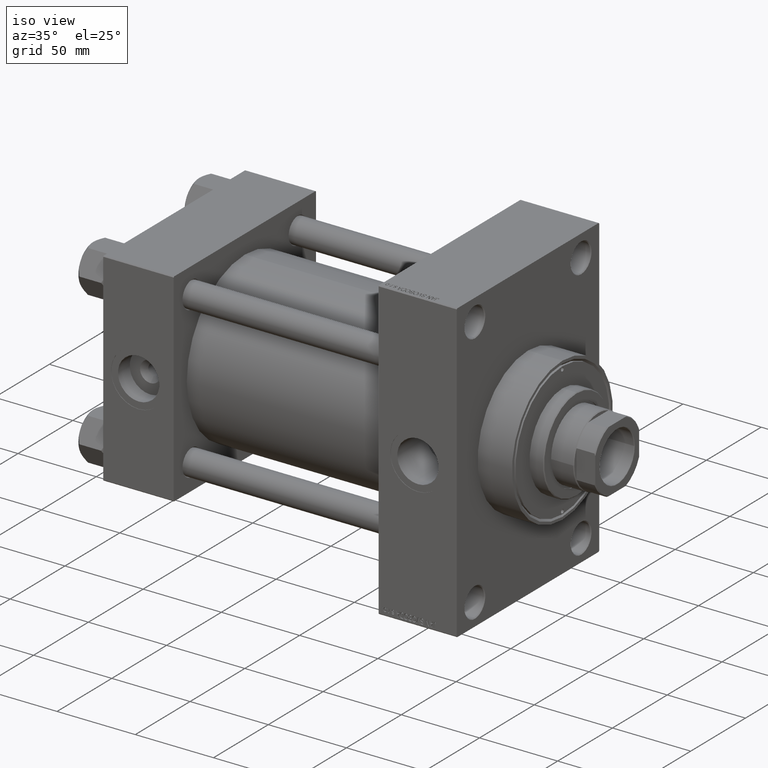
[diagram: clean part render]
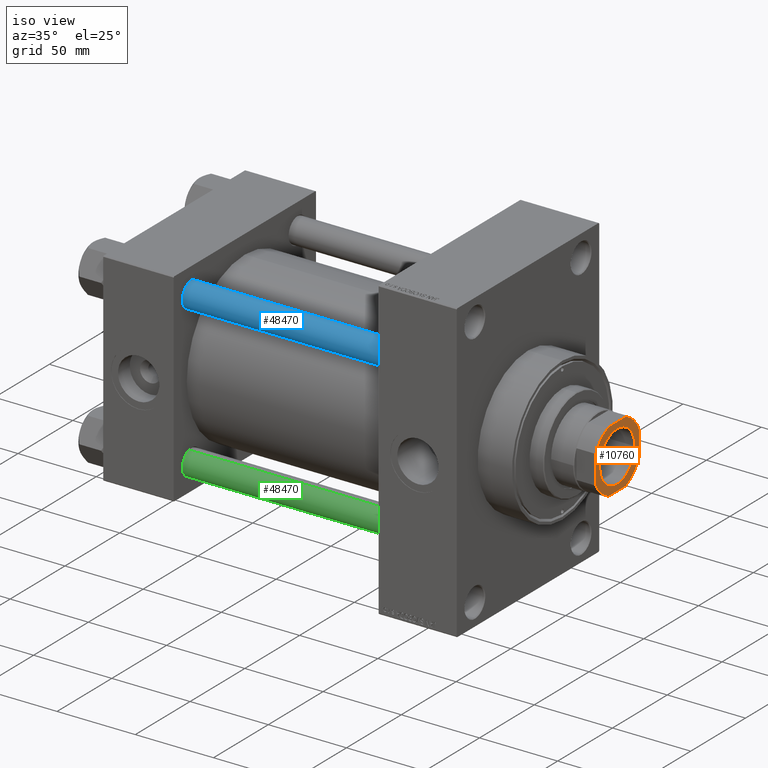
[diagram: same view with three faces highlighted in distinct colors, each labeled with its STEP entity id]
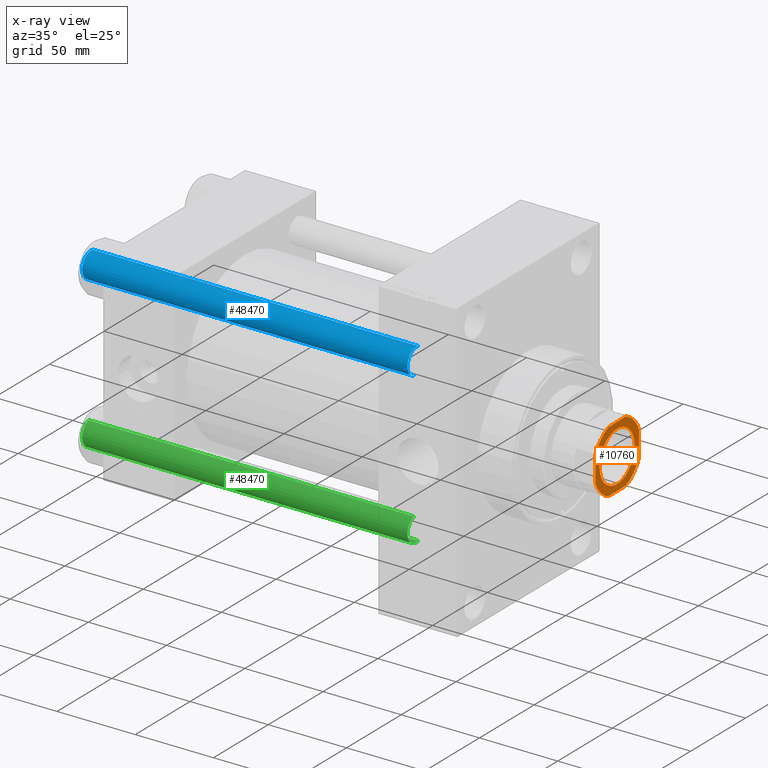
[diagram: x-ray of the same camera — body ghosted, the three highlighted faces saturated]
A machine part, iso view with three faces highlighted in distinct colors.
The next image is the same camera in x-ray (body ghosted, the three faces saturated) — at least one of them is partly hidden behind the body in this view.
Their STEP definitions:

[orange] entity #10760 — the highlighted planar face has unit normal (1, 0, 0).
#2503 = DIRECTION ( 'NONE',  ( 0.000000000000000000, -0.000000000000000000, -1.000000000000000000 ) ) ;
#2537 = CARTESIAN_POINT ( 'NONE',  ( 0.000000000000000000, 0.000000000000000000, 238.0000000000000000 ) ) ;
#2630 = DIRECTION ( 'NONE',  ( 1.000000000000000000, 0.000000000000000000, 0.000000000000000000 ) ) ;
#2685 = VERTEX_POINT ( 'NONE', #7756 ) ;
#3050 = EDGE_LOOP ( 'NONE', ( #30208, #29051 ) ) ;
#3477 = EDGE_CURVE ( 'NONE', #2685, #27339, #14506, .T. ) ;
#3597 = CIRCLE ( 'NONE', #14881, 21.49999999999998579 ) ;
#3603 = EDGE_CURVE ( 'NONE', #48784, #8036, #22591, .T. ) ;
#5300 = AXIS2_PLACEMENT_3D ( 'NONE', #34429, #22780, #41259 ) ;
#5820 = DIRECTION ( 'NONE',  ( 1.000000000000000000, 0.000000000000000000, 0.000000000000000000 ) ) ;
#6553 = DIRECTION ( 'NONE',  ( -0.000000000000000000, 0.000000000000000000, 1.000000000000000000 ) ) ;
#7392 = CARTESIAN_POINT ( 'NONE',  ( -7.889866919029707049, -20.00000000000000000, 238.0000000000000000 ) ) ;
#7756 = CARTESIAN_POINT ( 'NONE',  ( 16.05000000000003624, 0.000000000000000000, 238.0000000000000000 ) ) ;
#7941 = DIRECTION ( 'NONE',  ( 1.000000000000000000, 0.000000000000000000, 0.000000000000000000 ) ) ;
#8036 = VERTEX_POINT ( 'NONE', #39852 ) ;
#8206 = VECTOR ( 'NONE', #13420, 1000.000000000000000 ) ;
#9530 = CARTESIAN_POINT ( 'NONE',  ( 7.889866919029819847, -20.00000000000000000, 238.0000000000000000 ) ) ;
#10760 = ADVANCED_FACE ( 'NONE', ( #13443, #48358 ), #12689, .T. ) ;
#10949 = DIRECTION ( 'NONE',  ( -1.000000000000000000, -0.000000000000000000, -0.000000000000000000 ) ) ;
#11484 = EDGE_CURVE ( 'NONE', #36184, #26987, #44297, .T. ) ;
#11493 = CARTESIAN_POINT ( 'NONE',  ( -20.00000000000000000, 7.889866919029703496, 238.0000000000000000 ) ) ;
#11809 = CARTESIAN_POINT ( 'NONE',  ( 0.000000000000000000, 0.000000000000000000, 238.0000000000000000 ) ) ;
#11979 = CARTESIAN_POINT ( 'NONE',  ( -19.99999999999999645, -20.00000000000000000, 238.0000000000000000 ) ) ;
#12689 = PLANE ( 'NONE',  #49514 ) ;
#12907 = CARTESIAN_POINT ( 'NONE',  ( -20.00000000000000355, 20.00000000000000000, 238.0000000000000000 ) ) ;
#12942 = ORIENTED_EDGE ( 'NONE', *, *, #17716, .T. ) ;
#13420 = DIRECTION ( 'NONE',  ( 1.734723475976807094E-16, -1.000000000000000000, 0.000000000000000000 ) ) ;
#13443 = FACE_BOUND ( 'NONE', #3050, .T. ) ;
#13943 = ORIENTED_EDGE ( 'NONE', *, *, #14117, .T. ) ;
#14117 = EDGE_CURVE ( 'NONE', #47388, #48998, #16270, .T. ) ;
#14506 = CIRCLE ( 'NONE', #28227, 16.05000000000003624 ) ;
#14805 = DIRECTION ( 'NONE',  ( -0.000000000000000000, 0.000000000000000000, 1.000000000000000000 ) ) ;
#14881 = AXIS2_PLACEMENT_3D ( 'NONE', #27178, #14805, #22386 ) ;
#15184 = CARTESIAN_POINT ( 'NONE',  ( -7.889866919029707049, 20.00000000000000000, 238.0000000000000000 ) ) ;
#15339 = AXIS2_PLACEMENT_3D ( 'NONE', #11809, #38859, #43180 ) ;
#15780 = VERTEX_POINT ( 'NONE', #15184 ) ;
#16203 = CARTESIAN_POINT ( 'NONE',  ( 20.00000000000000000, -7.889866919029816295, 238.0000000000000000 ) ) ;
#16270 = LINE ( 'NONE', #11979, #27676 ) ;
#17250 = DIRECTION ( 'NONE',  ( 1.000000000000000000, 0.000000000000000000, 0.000000000000000000 ) ) ;
#17716 = EDGE_CURVE ( 'NONE', #8036, #15780, #49652, .T. ) ;
#18868 = EDGE_CURVE ( 'NONE', #27902, #48784, #21755, .T. ) ;
#19977 = EDGE_CURVE ( 'NONE', #27339, #2685, #27108, .T. ) ;
#21323 = CARTESIAN_POINT ( 'NONE',  ( 0.000000000000000000, 0.000000000000000000, 238.0000000000000000 ) ) ;
#21755 = LINE ( 'NONE', #40009, #46461 ) ;
#22075 = DIRECTION ( 'NONE',  ( -0.000000000000000000, 0.000000000000000000, 1.000000000000000000 ) ) ;
#22386 = DIRECTION ( 'NONE',  ( 1.000000000000000000, 0.000000000000000000, 0.000000000000000000 ) ) ;
#22591 = CIRCLE ( 'NONE', #15339, 21.49999999999999645 ) ;
#22780 = DIRECTION ( 'NONE',  ( 0.000000000000000000, -0.000000000000000000, -1.000000000000000000 ) ) ;
#23600 = EDGE_CURVE ( 'NONE', #48998, #27902, #28234, .T. ) ;
#24595 = CARTESIAN_POINT ( 'NONE',  ( 0.000000000000000000, 0.000000000000000000, 238.0000000000000000 ) ) ;
#24624 = VECTOR ( 'NONE', #10949, 1000.000000000000000 ) ;
#24839 = DIRECTION ( 'NONE',  ( -0.000000000000000000, 0.000000000000000000, 1.000000000000000000 ) ) ;
#25326 = DIRECTION ( 'NONE',  ( -1.734723475976807094E-16, 1.000000000000000000, -0.000000000000000000 ) ) ;
#26987 = VERTEX_POINT ( 'NONE', #34632 ) ;
#27108 = CIRCLE ( 'NONE', #5300, 16.05000000000003624 ) ;
#27178 = CARTESIAN_POINT ( 'NONE',  ( 0.000000000000000000, 0.000000000000000000, 238.0000000000000000 ) ) ;
#27339 = VERTEX_POINT ( 'NONE', #36076 ) ;
#27676 = VECTOR ( 'NONE', #7941, 1000.000000000000000 ) ;
#27902 = VERTEX_POINT ( 'NONE', #16203 ) ;
#27961 = ORIENTED_EDGE ( 'NONE', *, *, #36193, .T. ) ;
#28227 = AXIS2_PLACEMENT_3D ( 'NONE', #44746, #2503, #37660 ) ;
#28234 = CIRCLE ( 'NONE', #30655, 21.50000000000002487 ) ;
#29051 = ORIENTED_EDGE ( 'NONE', *, *, #19977, .T. ) ;
#30208 = ORIENTED_EDGE ( 'NONE', *, *, #3477, .T. ) ;
#30655 = AXIS2_PLACEMENT_3D ( 'NONE', #2537, #6553, #5820 ) ;
#34117 = CARTESIAN_POINT ( 'NONE',  ( 20.00000000000000000, 7.889866919029738135, 238.0000000000000000 ) ) ;
#34315 = ORIENTED_EDGE ( 'NONE', *, *, #11484, .T. ) ;
#34323 = ORIENTED_EDGE ( 'NONE', *, *, #3603, .T. ) ;
#34429 = CARTESIAN_POINT ( 'NONE',  ( 0.000000000000000000, 0.000000000000000000, 238.0000000000000000 ) ) ;
#34632 = CARTESIAN_POINT ( 'NONE',  ( -20.00000000000000000, -7.889866919029710601, 238.0000000000000000 ) ) ;
#36076 = CARTESIAN_POINT ( 'NONE',  ( -16.05000000000003624, 1.965558112631506149E-15, 238.0000000000000000 ) ) ;
#36184 = VERTEX_POINT ( 'NONE', #11493 ) ;
#36193 = EDGE_CURVE ( 'NONE', #15780, #36184, #3597, .T. ) ;
#37660 = DIRECTION ( 'NONE',  ( 1.000000000000000000, 0.000000000000000000, 0.000000000000000000 ) ) ;
#38540 = ORIENTED_EDGE ( 'NONE', *, *, #47305, .T. ) ;
#38859 = DIRECTION ( 'NONE',  ( -0.000000000000000000, 0.000000000000000000, 1.000000000000000000 ) ) ;
#39388 = EDGE_LOOP ( 'NONE', ( #47689, #34323, #12942, #27961, #34315, #38540, #13943, #40340 ) ) ;
#39852 = CARTESIAN_POINT ( 'NONE',  ( 7.889866919029736358, 20.00000000000000000, 238.0000000000000000 ) ) ;
#40009 = CARTESIAN_POINT ( 'NONE',  ( 19.99999999999999645, 20.00000000000000000, 238.0000000000000000 ) ) ;
#40340 = ORIENTED_EDGE ( 'NONE', *, *, #23600, .T. ) ;
#41259 = DIRECTION ( 'NONE',  ( 1.000000000000000000, 0.000000000000000000, 0.000000000000000000 ) ) ;
#43180 = DIRECTION ( 'NONE',  ( 1.000000000000000000, 0.000000000000000000, 0.000000000000000000 ) ) ;
#43478 = CIRCLE ( 'NONE', #49943, 21.49999999999998579 ) ;
#44297 = LINE ( 'NONE', #12907, #8206 ) ;
#44746 = CARTESIAN_POINT ( 'NONE',  ( 0.000000000000000000, 0.000000000000000000, 238.0000000000000000 ) ) ;
#45616 = CARTESIAN_POINT ( 'NONE',  ( -20.00000000000000355, 20.00000000000000000, 238.0000000000000000 ) ) ;
#46461 = VECTOR ( 'NONE', #25326, 1000.000000000000000 ) ;
#47305 = EDGE_CURVE ( 'NONE', #26987, #47388, #43478, .T. ) ;
#47388 = VERTEX_POINT ( 'NONE', #7392 ) ;
#47689 = ORIENTED_EDGE ( 'NONE', *, *, #18868, .T. ) ;
#48358 = FACE_OUTER_BOUND ( 'NONE', #39388, .T. ) ;
#48784 = VERTEX_POINT ( 'NONE', #34117 ) ;
#48998 = VERTEX_POINT ( 'NONE', #9530 ) ;
#49514 = AXIS2_PLACEMENT_3D ( 'NONE', #24595, #24839, #17250 ) ;
#49652 = LINE ( 'NONE', #45616, #24624 ) ;
#49943 = AXIS2_PLACEMENT_3D ( 'NONE', #21323, #22075, #2630 ) ;

[blue] entity #48470 — the highlighted cylindrical surface (edge-blend (fillet) strip) has radius 8 mm, axis along (1, 0, 0).
#571 = LINE ( 'NONE', #27342, #42291 ) ;
#1368 = EDGE_LOOP ( 'NONE', ( #31277, #18907, #17214, #18451 ) ) ;
#2927 = DIRECTION ( 'NONE',  ( -0.000000000000000000, -0.000000000000000000, -1.000000000000000000 ) ) ;
#4129 = EDGE_CURVE ( 'NONE', #37170, #17638, #33142, .T. ) ;
#4755 = CARTESIAN_POINT ( 'NONE',  ( 8.000000000000000000, 9.797174393178825657E-16, 209.0000000000000000 ) ) ;
#5817 = AXIS2_PLACEMENT_3D ( 'NONE', #32679, #33677, #48349 ) ;
#6601 = DIRECTION ( 'NONE',  ( 1.000000000000000000, 0.000000000000000000, 0.000000000000000000 ) ) ;
#10888 = EDGE_CURVE ( 'NONE', #23401, #31763, #27681, .T. ) ;
#12184 = VECTOR ( 'NONE', #16641, 1000.000000000000000 ) ;
#12330 = AXIS2_PLACEMENT_3D ( 'NONE', #14957, #41010, #6601 ) ;
#13490 = CARTESIAN_POINT ( 'NONE',  ( 0.000000000000000000, 0.000000000000000000, 0.5000000000000004441 ) ) ;
#14957 = CARTESIAN_POINT ( 'NONE',  ( 0.000000000000000000, 0.000000000000000000, 208.4999999999999716 ) ) ;
#16641 = DIRECTION ( 'NONE',  ( -0.000000000000000000, -0.000000000000000000, -1.000000000000000000 ) ) ;
#17214 = ORIENTED_EDGE ( 'NONE', *, *, #4129, .T. ) ;
#17638 = VERTEX_POINT ( 'NONE', #18777 ) ;
#18234 = CYLINDRICAL_SURFACE ( 'NONE', #5817, 8.000000000000000000 ) ;
#18451 = ORIENTED_EDGE ( 'NONE', *, *, #34289, .F. ) ;
#18777 = CARTESIAN_POINT ( 'NONE',  ( -8.000000000000000000, 0.000000000000000000, 0.5000000000000004441 ) ) ;
#18907 = ORIENTED_EDGE ( 'NONE', *, *, #26152, .T. ) ;
#22626 = AXIS2_PLACEMENT_3D ( 'NONE', #13490, #32970, #48402 ) ;
#23401 = VERTEX_POINT ( 'NONE', #37494 ) ;
#26152 = EDGE_CURVE ( 'NONE', #31763, #37170, #42957, .T. ) ;
#27342 = CARTESIAN_POINT ( 'NONE',  ( -8.000000000000000000, 0.000000000000000000, 209.0000000000000000 ) ) ;
#27681 = CIRCLE ( 'NONE', #12330, 8.000000000000000000 ) ;
#31277 = ORIENTED_EDGE ( 'NONE', *, *, #10888, .T. ) ;
#31763 = VERTEX_POINT ( 'NONE', #45999 ) ;
#32679 = CARTESIAN_POINT ( 'NONE',  ( 0.000000000000000000, 0.000000000000000000, 209.0000000000000000 ) ) ;
#32970 = DIRECTION ( 'NONE',  ( -0.000000000000000000, -0.000000000000000000, 1.000000000000000000 ) ) ;
#33142 = CIRCLE ( 'NONE', #22626, 8.000000000000000000 ) ;
#33172 = CARTESIAN_POINT ( 'NONE',  ( 8.000000000000000000, 9.797174393178825657E-16, 0.5000000000000004441 ) ) ;
#33677 = DIRECTION ( 'NONE',  ( -0.000000000000000000, -0.000000000000000000, -1.000000000000000000 ) ) ;
#34289 = EDGE_CURVE ( 'NONE', #23401, #17638, #571, .T. ) ;
#36458 = FACE_OUTER_BOUND ( 'NONE', #1368, .T. ) ;
#37170 = VERTEX_POINT ( 'NONE', #33172 ) ;
#37494 = CARTESIAN_POINT ( 'NONE',  ( -8.000000000000000000, 0.000000000000000000, 208.4999999999999716 ) ) ;
#41010 = DIRECTION ( 'NONE',  ( 0.000000000000000000, 0.000000000000000000, -1.000000000000000000 ) ) ;
#42291 = VECTOR ( 'NONE', #2927, 1000.000000000000000 ) ;
#42957 = LINE ( 'NONE', #4755, #12184 ) ;
#45999 = CARTESIAN_POINT ( 'NONE',  ( 8.000000000000000000, 9.797174393178825657E-16, 208.4999999999999716 ) ) ;
#48349 = DIRECTION ( 'NONE',  ( -1.000000000000000000, 0.000000000000000000, 0.000000000000000000 ) ) ;
#48402 = DIRECTION ( 'NONE',  ( 1.000000000000000000, 0.000000000000000000, 0.000000000000000000 ) ) ;
#48470 = ADVANCED_FACE ( 'NONE', ( #36458 ), #18234, .T. ) ;

[green] entity #48470 — the highlighted cylindrical surface (edge-blend (fillet) strip) has radius 8 mm, axis along (-1, 0, 0).
#571 = LINE ( 'NONE', #27342, #42291 ) ;
#1368 = EDGE_LOOP ( 'NONE', ( #31277, #18907, #17214, #18451 ) ) ;
#2927 = DIRECTION ( 'NONE',  ( -0.000000000000000000, -0.000000000000000000, -1.000000000000000000 ) ) ;
#4129 = EDGE_CURVE ( 'NONE', #37170, #17638, #33142, .T. ) ;
#4755 = CARTESIAN_POINT ( 'NONE',  ( 8.000000000000000000, 9.797174393178825657E-16, 209.0000000000000000 ) ) ;
#5817 = AXIS2_PLACEMENT_3D ( 'NONE', #32679, #33677, #48349 ) ;
#6601 = DIRECTION ( 'NONE',  ( 1.000000000000000000, 0.000000000000000000, 0.000000000000000000 ) ) ;
#10888 = EDGE_CURVE ( 'NONE', #23401, #31763, #27681, .T. ) ;
#12184 = VECTOR ( 'NONE', #16641, 1000.000000000000000 ) ;
#12330 = AXIS2_PLACEMENT_3D ( 'NONE', #14957, #41010, #6601 ) ;
#13490 = CARTESIAN_POINT ( 'NONE',  ( 0.000000000000000000, 0.000000000000000000, 0.5000000000000004441 ) ) ;
#14957 = CARTESIAN_POINT ( 'NONE',  ( 0.000000000000000000, 0.000000000000000000, 208.4999999999999716 ) ) ;
#16641 = DIRECTION ( 'NONE',  ( -0.000000000000000000, -0.000000000000000000, -1.000000000000000000 ) ) ;
#17214 = ORIENTED_EDGE ( 'NONE', *, *, #4129, .T. ) ;
#17638 = VERTEX_POINT ( 'NONE', #18777 ) ;
#18234 = CYLINDRICAL_SURFACE ( 'NONE', #5817, 8.000000000000000000 ) ;
#18451 = ORIENTED_EDGE ( 'NONE', *, *, #34289, .F. ) ;
#18777 = CARTESIAN_POINT ( 'NONE',  ( -8.000000000000000000, 0.000000000000000000, 0.5000000000000004441 ) ) ;
#18907 = ORIENTED_EDGE ( 'NONE', *, *, #26152, .T. ) ;
#22626 = AXIS2_PLACEMENT_3D ( 'NONE', #13490, #32970, #48402 ) ;
#23401 = VERTEX_POINT ( 'NONE', #37494 ) ;
#26152 = EDGE_CURVE ( 'NONE', #31763, #37170, #42957, .T. ) ;
#27342 = CARTESIAN_POINT ( 'NONE',  ( -8.000000000000000000, 0.000000000000000000, 209.0000000000000000 ) ) ;
#27681 = CIRCLE ( 'NONE', #12330, 8.000000000000000000 ) ;
#31277 = ORIENTED_EDGE ( 'NONE', *, *, #10888, .T. ) ;
#31763 = VERTEX_POINT ( 'NONE', #45999 ) ;
#32679 = CARTESIAN_POINT ( 'NONE',  ( 0.000000000000000000, 0.000000000000000000, 209.0000000000000000 ) ) ;
#32970 = DIRECTION ( 'NONE',  ( -0.000000000000000000, -0.000000000000000000, 1.000000000000000000 ) ) ;
#33142 = CIRCLE ( 'NONE', #22626, 8.000000000000000000 ) ;
#33172 = CARTESIAN_POINT ( 'NONE',  ( 8.000000000000000000, 9.797174393178825657E-16, 0.5000000000000004441 ) ) ;
#33677 = DIRECTION ( 'NONE',  ( -0.000000000000000000, -0.000000000000000000, -1.000000000000000000 ) ) ;
#34289 = EDGE_CURVE ( 'NONE', #23401, #17638, #571, .T. ) ;
#36458 = FACE_OUTER_BOUND ( 'NONE', #1368, .T. ) ;
#37170 = VERTEX_POINT ( 'NONE', #33172 ) ;
#37494 = CARTESIAN_POINT ( 'NONE',  ( -8.000000000000000000, 0.000000000000000000, 208.4999999999999716 ) ) ;
#41010 = DIRECTION ( 'NONE',  ( 0.000000000000000000, 0.000000000000000000, -1.000000000000000000 ) ) ;
#42291 = VECTOR ( 'NONE', #2927, 1000.000000000000000 ) ;
#42957 = LINE ( 'NONE', #4755, #12184 ) ;
#45999 = CARTESIAN_POINT ( 'NONE',  ( 8.000000000000000000, 9.797174393178825657E-16, 208.4999999999999716 ) ) ;
#48349 = DIRECTION ( 'NONE',  ( -1.000000000000000000, 0.000000000000000000, 0.000000000000000000 ) ) ;
#48402 = DIRECTION ( 'NONE',  ( 1.000000000000000000, 0.000000000000000000, 0.000000000000000000 ) ) ;
#48470 = ADVANCED_FACE ( 'NONE', ( #36458 ), #18234, .T. ) ;